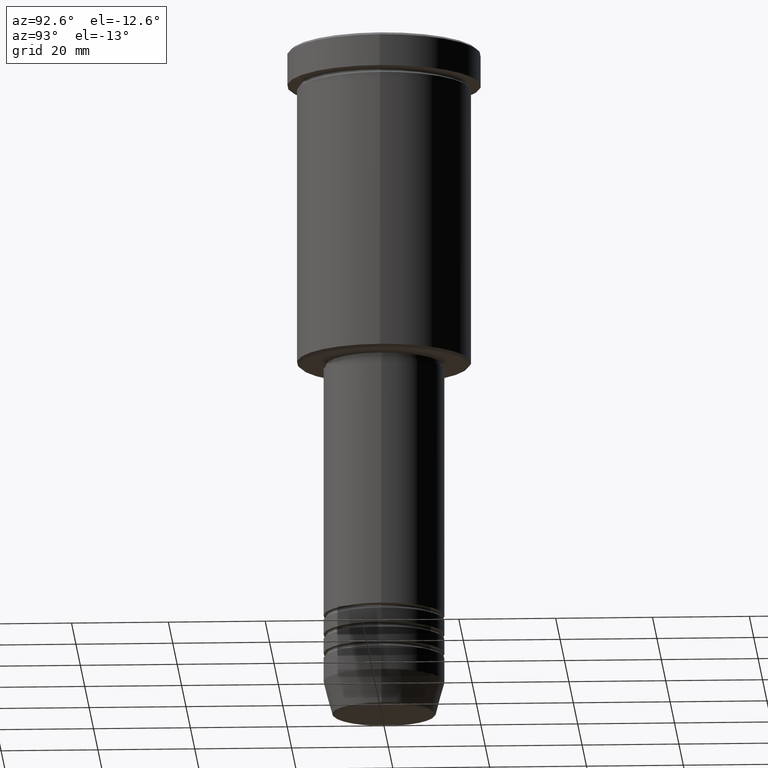
[diagram: clean part render]
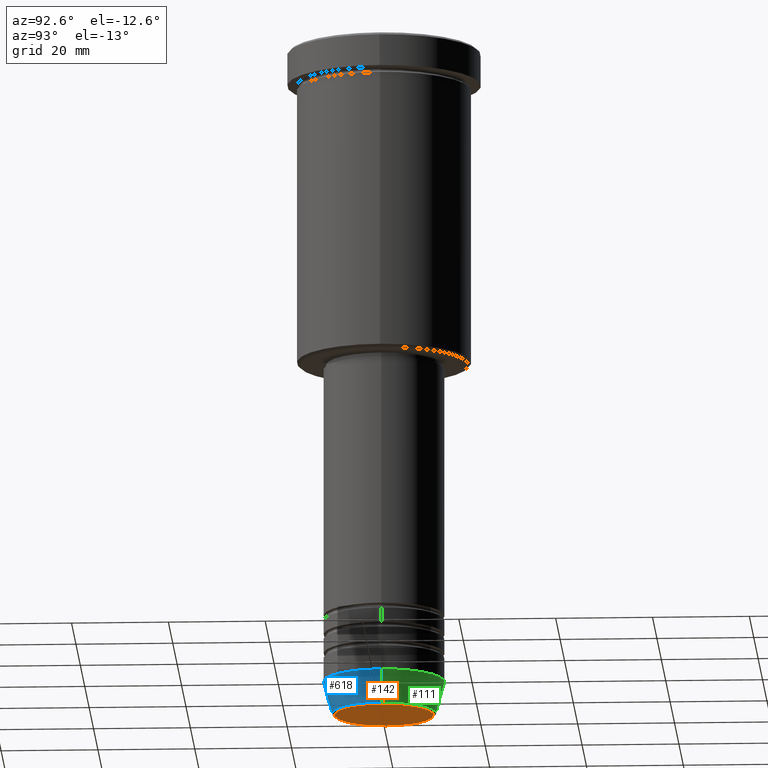
[diagram: same view with three faces highlighted in distinct colors, each labeled with its STEP entity id]
A machine part, auxiliary view with three faces highlighted in distinct colors.
Their STEP definitions:

[orange] entity #142 — the highlighted planar face has unit normal (0, -0, 1).
#92 = DIRECTION ( 'NONE',  ( 0.000000000000000000, 0.000000000000000000, -1.000000000000000000 ) ) ;
#127 = CIRCLE ( 'NONE', #941, 10.24069215899265828 ) ;
#139 = DIRECTION ( 'NONE',  ( 1.000000000000000000, 0.000000000000000000, 0.000000000000000000 ) ) ;
#142 = ADVANCED_FACE ( 'NONE', ( #492 ), #914, .F. ) ;
#195 = DIRECTION ( 'NONE',  ( 0.000000000000000000, -0.000000000000000000, 1.000000000000000000 ) ) ;
#246 = VERTEX_POINT ( 'NONE', #1028 ) ;
#374 = AXIS2_PLACEMENT_3D ( 'NONE', #1014, #195, #1010 ) ;
#428 = EDGE_CURVE ( 'NONE', #560, #246, #1144, .T. ) ;
#490 = CARTESIAN_POINT ( 'NONE',  ( -10.24069215899265828, 1.283696036640842178E-15, -140.0000000000000000 ) ) ;
#492 = FACE_OUTER_BOUND ( 'NONE', #771, .T. ) ;
#560 = VERTEX_POINT ( 'NONE', #490 ) ;
#762 = CARTESIAN_POINT ( 'NONE',  ( 0.000000000000000000, 0.000000000000000000, -140.0000000000000000 ) ) ;
#769 = ORIENTED_EDGE ( 'NONE', *, *, #776, .T. ) ;
#771 = EDGE_LOOP ( 'NONE', ( #769, #1136 ) ) ;
#776 = EDGE_CURVE ( 'NONE', #246, #560, #127, .T. ) ;
#788 = AXIS2_PLACEMENT_3D ( 'NONE', #798, #1043, #1155 ) ;
#798 = CARTESIAN_POINT ( 'NONE',  ( 0.000000000000000000, 0.000000000000000000, -140.0000000000000000 ) ) ;
#914 = PLANE ( 'NONE',  #374 ) ;
#941 = AXIS2_PLACEMENT_3D ( 'NONE', #762, #92, #139 ) ;
#1010 = DIRECTION ( 'NONE',  ( 1.000000000000000000, 0.000000000000000000, 0.000000000000000000 ) ) ;
#1014 = CARTESIAN_POINT ( 'NONE',  ( 0.000000000000000000, 0.000000000000000000, -140.0000000000000000 ) ) ;
#1028 = CARTESIAN_POINT ( 'NONE',  ( 10.24069215899265828, 0.000000000000000000, -140.0000000000000000 ) ) ;
#1043 = DIRECTION ( 'NONE',  ( 0.000000000000000000, 0.000000000000000000, -1.000000000000000000 ) ) ;
#1136 = ORIENTED_EDGE ( 'NONE', *, *, #428, .T. ) ;
#1144 = CIRCLE ( 'NONE', #788, 10.24069215899265828 ) ;
#1155 = DIRECTION ( 'NONE',  ( 1.000000000000000000, 0.000000000000000000, 0.000000000000000000 ) ) ;

[blue] entity #618 — the highlighted conical surface has half-angle 15 deg.
#11 = VERTEX_POINT ( 'NONE', #1047 ) ;
#15 = EDGE_CURVE ( 'NONE', #11, #805, #1037, .T. ) ;
#20 = FACE_OUTER_BOUND ( 'NONE', #356, .T. ) ;
#52 = CARTESIAN_POINT ( 'NONE',  ( 12.50000000000000000, 0.000000000000000000, -133.0000000000000000 ) ) ;
#108 = ORIENTED_EDGE ( 'NONE', *, *, #654, .F. ) ;
#129 = CIRCLE ( 'NONE', #399, 10.72365507213718416 ) ;
#175 = CARTESIAN_POINT ( 'NONE',  ( 10.72365507213718416, 0.000000000000000000, -139.6294095225512990 ) ) ;
#221 = VECTOR ( 'NONE', #588, 1000.000000000000000 ) ;
#227 = CARTESIAN_POINT ( 'NONE',  ( -12.50000000000000000, 1.530808498934191521E-15, -133.0000000000000000 ) ) ;
#268 = ORIENTED_EDGE ( 'NONE', *, *, #15, .F. ) ;
#271 = DIRECTION ( 'NONE',  ( 1.000000000000000000, 0.000000000000000000, 0.000000000000000000 ) ) ;
#356 = EDGE_LOOP ( 'NONE', ( #268, #713, #748, #108 ) ) ;
#359 = CONICAL_SURFACE ( 'NONE', #494, 12.50000000000000000, 0.2617993877991500740 ) ;
#399 = AXIS2_PLACEMENT_3D ( 'NONE', #1179, #1002, #271 ) ;
#432 = DIRECTION ( 'NONE',  ( -0.000000000000000000, -0.000000000000000000, 1.000000000000000000 ) ) ;
#440 = DIRECTION ( 'NONE',  ( 1.000000000000000000, 0.000000000000000000, 0.000000000000000000 ) ) ;
#451 = CIRCLE ( 'NONE', #960, 12.50000000000000000 ) ;
#464 = DIRECTION ( 'NONE',  ( -0.000000000000000000, -0.000000000000000000, 1.000000000000000000 ) ) ;
#494 = AXIS2_PLACEMENT_3D ( 'NONE', #931, #464, #734 ) ;
#554 = VERTEX_POINT ( 'NONE', #175 ) ;
#588 = DIRECTION ( 'NONE',  ( -0.2588190451025213501, 3.169619151431772337E-17, 0.9659258262890680902 ) ) ;
#618 = ADVANCED_FACE ( 'NONE', ( #20 ), #359, .T. ) ;
#654 = EDGE_CURVE ( 'NONE', #805, #954, #451, .T. ) ;
#713 = ORIENTED_EDGE ( 'NONE', *, *, #854, .T. ) ;
#734 = DIRECTION ( 'NONE',  ( 1.000000000000000000, 0.000000000000000000, 0.000000000000000000 ) ) ;
#748 = ORIENTED_EDGE ( 'NONE', *, *, #1153, .T. ) ;
#805 = VERTEX_POINT ( 'NONE', #809 ) ;
#809 = CARTESIAN_POINT ( 'NONE',  ( -12.50000000000000000, 1.530808498934191521E-15, -133.0000000000000000 ) ) ;
#854 = EDGE_CURVE ( 'NONE', #11, #554, #129, .T. ) ;
#931 = CARTESIAN_POINT ( 'NONE',  ( 0.000000000000000000, 0.000000000000000000, -133.0000000000000000 ) ) ;
#935 = CARTESIAN_POINT ( 'NONE',  ( 12.50000000000000000, 0.000000000000000000, -133.0000000000000000 ) ) ;
#954 = VERTEX_POINT ( 'NONE', #935 ) ;
#960 = AXIS2_PLACEMENT_3D ( 'NONE', #1149, #432, #440 ) ;
#964 = DIRECTION ( 'NONE',  ( 0.2588190451025213501, 0.000000000000000000, 0.9659258262890680902 ) ) ;
#1002 = DIRECTION ( 'NONE',  ( -0.000000000000000000, -0.000000000000000000, 1.000000000000000000 ) ) ;
#1037 = LINE ( 'NONE', #227, #221 ) ;
#1046 = LINE ( 'NONE', #52, #1131 ) ;
#1047 = CARTESIAN_POINT ( 'NONE',  ( -10.72365507213718416, 1.422038742429750121E-15, -139.6294095225512990 ) ) ;
#1131 = VECTOR ( 'NONE', #964, 1000.000000000000000 ) ;
#1149 = CARTESIAN_POINT ( 'NONE',  ( 0.000000000000000000, 0.000000000000000000, -133.0000000000000000 ) ) ;
#1153 = EDGE_CURVE ( 'NONE', #554, #954, #1046, .T. ) ;
#1179 = CARTESIAN_POINT ( 'NONE',  ( 0.000000000000000000, 0.000000000000000000, -139.6294095225512990 ) ) ;

[green] entity #111 — the highlighted conical surface has half-angle 15 deg.
#11 = VERTEX_POINT ( 'NONE', #1047 ) ;
#15 = EDGE_CURVE ( 'NONE', #11, #805, #1037, .T. ) ;
#28 = CIRCLE ( 'NONE', #753, 12.50000000000000000 ) ;
#52 = CARTESIAN_POINT ( 'NONE',  ( 12.50000000000000000, 0.000000000000000000, -133.0000000000000000 ) ) ;
#75 = ORIENTED_EDGE ( 'NONE', *, *, #1153, .F. ) ;
#111 = ADVANCED_FACE ( 'NONE', ( #937 ), #957, .T. ) ;
#122 = DIRECTION ( 'NONE',  ( -0.000000000000000000, -0.000000000000000000, 1.000000000000000000 ) ) ;
#137 = EDGE_CURVE ( 'NONE', #954, #805, #28, .T. ) ;
#175 = CARTESIAN_POINT ( 'NONE',  ( 10.72365507213718416, 0.000000000000000000, -139.6294095225512990 ) ) ;
#218 = CARTESIAN_POINT ( 'NONE',  ( 0.000000000000000000, 0.000000000000000000, -133.0000000000000000 ) ) ;
#221 = VECTOR ( 'NONE', #588, 1000.000000000000000 ) ;
#227 = CARTESIAN_POINT ( 'NONE',  ( -12.50000000000000000, 1.530808498934191521E-15, -133.0000000000000000 ) ) ;
#302 = DIRECTION ( 'NONE',  ( -0.000000000000000000, -0.000000000000000000, 1.000000000000000000 ) ) ;
#410 = AXIS2_PLACEMENT_3D ( 'NONE', #1108, #122, #1032 ) ;
#459 = EDGE_LOOP ( 'NONE', ( #558, #1146, #899, #75 ) ) ;
#505 = DIRECTION ( 'NONE',  ( 1.000000000000000000, 0.000000000000000000, 0.000000000000000000 ) ) ;
#526 = DIRECTION ( 'NONE',  ( -0.000000000000000000, -0.000000000000000000, 1.000000000000000000 ) ) ;
#543 = CIRCLE ( 'NONE', #691, 10.72365507213718416 ) ;
#554 = VERTEX_POINT ( 'NONE', #175 ) ;
#558 = ORIENTED_EDGE ( 'NONE', *, *, #724, .T. ) ;
#588 = DIRECTION ( 'NONE',  ( -0.2588190451025213501, 3.169619151431772337E-17, 0.9659258262890680902 ) ) ;
#659 = DIRECTION ( 'NONE',  ( 1.000000000000000000, 0.000000000000000000, 0.000000000000000000 ) ) ;
#691 = AXIS2_PLACEMENT_3D ( 'NONE', #1154, #526, #505 ) ;
#724 = EDGE_CURVE ( 'NONE', #554, #11, #543, .T. ) ;
#753 = AXIS2_PLACEMENT_3D ( 'NONE', #218, #302, #659 ) ;
#805 = VERTEX_POINT ( 'NONE', #809 ) ;
#809 = CARTESIAN_POINT ( 'NONE',  ( -12.50000000000000000, 1.530808498934191521E-15, -133.0000000000000000 ) ) ;
#899 = ORIENTED_EDGE ( 'NONE', *, *, #137, .F. ) ;
#935 = CARTESIAN_POINT ( 'NONE',  ( 12.50000000000000000, 0.000000000000000000, -133.0000000000000000 ) ) ;
#937 = FACE_OUTER_BOUND ( 'NONE', #459, .T. ) ;
#954 = VERTEX_POINT ( 'NONE', #935 ) ;
#957 = CONICAL_SURFACE ( 'NONE', #410, 12.50000000000000000, 0.2617993877991500740 ) ;
#964 = DIRECTION ( 'NONE',  ( 0.2588190451025213501, 0.000000000000000000, 0.9659258262890680902 ) ) ;
#1032 = DIRECTION ( 'NONE',  ( 1.000000000000000000, 0.000000000000000000, 0.000000000000000000 ) ) ;
#1037 = LINE ( 'NONE', #227, #221 ) ;
#1046 = LINE ( 'NONE', #52, #1131 ) ;
#1047 = CARTESIAN_POINT ( 'NONE',  ( -10.72365507213718416, 1.422038742429750121E-15, -139.6294095225512990 ) ) ;
#1108 = CARTESIAN_POINT ( 'NONE',  ( 0.000000000000000000, 0.000000000000000000, -133.0000000000000000 ) ) ;
#1131 = VECTOR ( 'NONE', #964, 1000.000000000000000 ) ;
#1146 = ORIENTED_EDGE ( 'NONE', *, *, #15, .T. ) ;
#1153 = EDGE_CURVE ( 'NONE', #554, #954, #1046, .T. ) ;
#1154 = CARTESIAN_POINT ( 'NONE',  ( 0.000000000000000000, 0.000000000000000000, -139.6294095225512990 ) ) ;